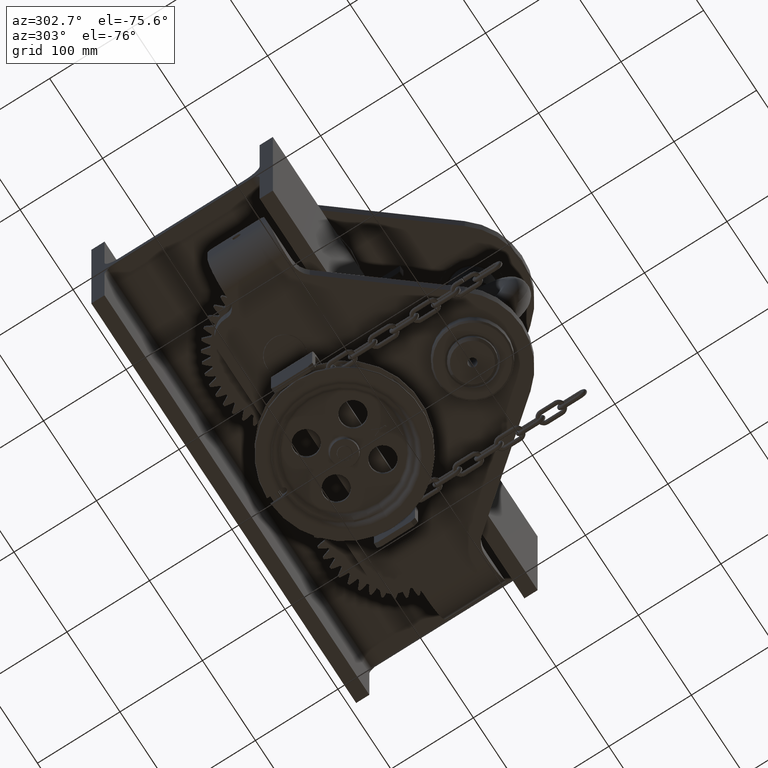
[diagram: clean part render]
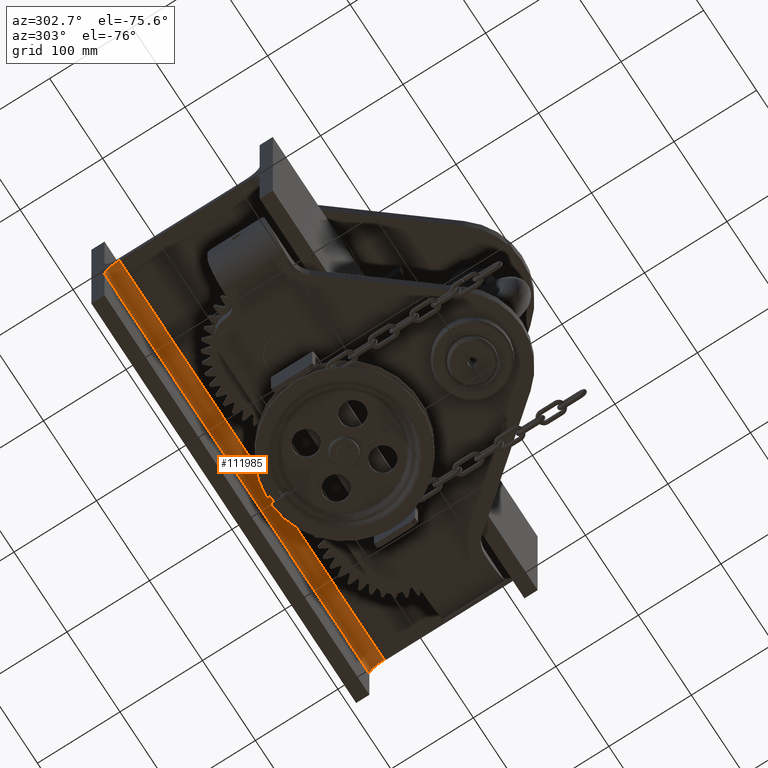
[diagram: same view with one face highlighted and labeled with its STEP entity id]
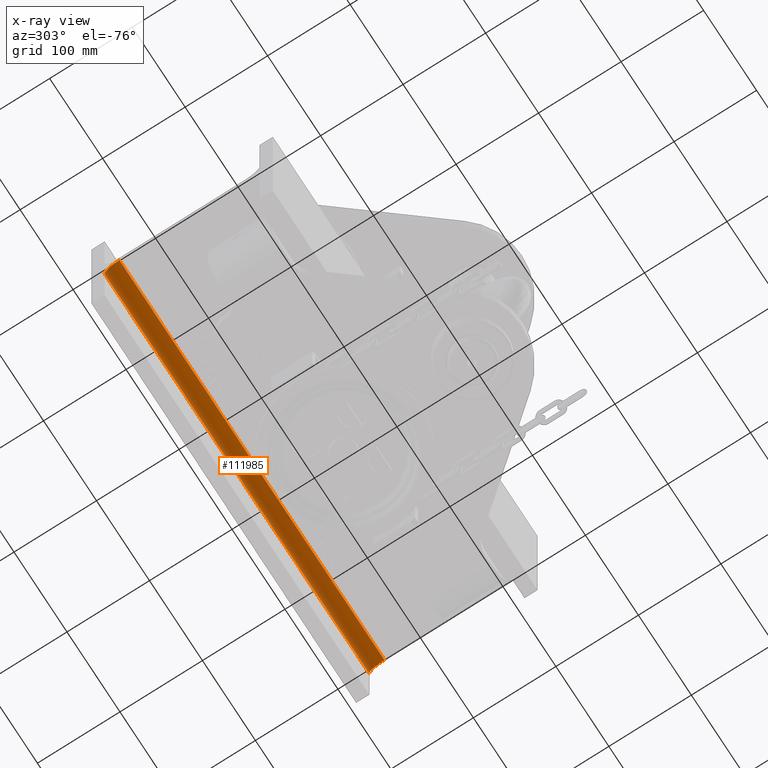
[diagram: x-ray of the same camera — body ghosted, the highlighted face saturated]
A machine part, auxiliary view. The second image highlights one B-rep face of the part: STEP entity #111985.
The next image is the same camera in x-ray: the body ghosted, the highlighted face saturated — about 4% of this face is hidden behind the body in this view.
In plain terms, the highlighted cylindrical surface (edge-blend (fillet) strip) has radius 18 mm, axis along (1, 0, 0).
Its self-contained STEP definition (entity closure, byte-faithful):
#4137 = CARTESIAN_POINT ( 'NONE',  ( -250.0000000000006500, 94.00000000000025600, -22.74999999999990800 ) ) ;
#4420 = ORIENTED_EDGE ( 'NONE', *, *, #66193, .F. ) ;
#5534 = DIRECTION ( 'NONE',  ( 0.0000000000000000000, 0.0000000000000000000, -1.000000000000000000 ) ) ;
#8247 = LINE ( 'NONE', #4137, #58541 ) ;
#9122 = VECTOR ( 'NONE', #47335, 1000.000000000000000 ) ;
#15493 = AXIS2_PLACEMENT_3D ( 'NONE', #126050, #56016, #5534 ) ;
#16851 = DIRECTION ( 'NONE',  ( 0.0000000000000000000, 0.0000000000000000000, -1.000000000000000000 ) ) ;
#17012 = CYLINDRICAL_SURFACE ( 'NONE', #15493, 17.99999999999997500 ) ;
#34370 = AXIS2_PLACEMENT_3D ( 'NONE', #121206, #61270, #100521 ) ;
#34374 = VERTEX_POINT ( 'NONE', #63168 ) ;
#38317 = EDGE_CURVE ( 'NONE', #34374, #98062, #55036, .T. ) ;
#38976 = LINE ( 'NONE', #107242, #9122 ) ;
#39074 = ORIENTED_EDGE ( 'NONE', *, *, #114491, .T. ) ;
#42526 = CIRCLE ( 'NONE', #34370, 17.99999999999997500 ) ;
#47335 = DIRECTION ( 'NONE',  ( 1.000000000000000000, 1.653671451887099000E-050, 1.925929944387234500E-033 ) ) ;
#49865 = CARTESIAN_POINT ( 'NONE',  ( 249.9999999999998600, 76.00000000000015600, -4.749999999999941400 ) ) ;
#50581 = VERTEX_POINT ( 'NONE', #49865 ) ;
#54642 = DIRECTION ( 'NONE',  ( 1.000000000000000000, 1.653671451887099000E-050, 1.925929944387234500E-033 ) ) ;
#55036 = CIRCLE ( 'NONE', #86879, 17.99999999999997500 ) ;
#56016 = DIRECTION ( 'NONE',  ( 1.000000000000000000, 1.653671451887099000E-050, 1.925929944387234500E-033 ) ) ;
#58541 = VECTOR ( 'NONE', #54642, 1000.000000000000000 ) ;
#61270 = DIRECTION ( 'NONE',  ( 1.000000000000000000, 1.653671451887099000E-050, 1.925929944387234500E-033 ) ) ;
#63168 = CARTESIAN_POINT ( 'NONE',  ( -250.0000000000006500, 94.00000000000025600, -22.74999999999990800 ) ) ;
#66193 = EDGE_CURVE ( 'NONE', #98062, #50581, #38976, .T. ) ;
#84288 = ORIENTED_EDGE ( 'NONE', *, *, #38317, .F. ) ;
#86366 = CARTESIAN_POINT ( 'NONE',  ( -250.0000000000006500, 76.00000000000015600, -22.74999999999992200 ) ) ;
#86879 = AXIS2_PLACEMENT_3D ( 'NONE', #86366, #117165, #16851 ) ;
#88657 = CARTESIAN_POINT ( 'NONE',  ( 249.9999999999998600, 94.00000000000025600, -22.74999999999990800 ) ) ;
#97224 = CARTESIAN_POINT ( 'NONE',  ( -250.0000000000006500, 76.00000000000015600, -4.749999999999941400 ) ) ;
#98062 = VERTEX_POINT ( 'NONE', #97224 ) ;
#100521 = DIRECTION ( 'NONE',  ( 0.0000000000000000000, 0.0000000000000000000, -1.000000000000000000 ) ) ;
#103540 = VERTEX_POINT ( 'NONE', #88657 ) ;
#107242 = CARTESIAN_POINT ( 'NONE',  ( -250.0000000000006500, 76.00000000000015600, -4.749999999999941400 ) ) ;
#108968 = EDGE_CURVE ( 'NONE', #34374, #103540, #8247, .T. ) ;
#109385 = ORIENTED_EDGE ( 'NONE', *, *, #108968, .T. ) ;
#111985 = ADVANCED_FACE ( 'NONE', ( #124168 ), #17012, .F. ) ;
#114491 = EDGE_CURVE ( 'NONE', #103540, #50581, #42526, .T. ) ;
#116373 = EDGE_LOOP ( 'NONE', ( #39074, #4420, #84288, #109385 ) ) ;
#117165 = DIRECTION ( 'NONE',  ( 1.000000000000000000, 1.653671451887099000E-050, 1.925929944387234500E-033 ) ) ;
#121206 = CARTESIAN_POINT ( 'NONE',  ( 249.9999999999998600, 76.00000000000015600, -22.74999999999992200 ) ) ;
#124168 = FACE_OUTER_BOUND ( 'NONE', #116373, .T. ) ;
#126050 = CARTESIAN_POINT ( 'NONE',  ( -250.0000000000006500, 76.00000000000015600, -22.74999999999992200 ) ) ;